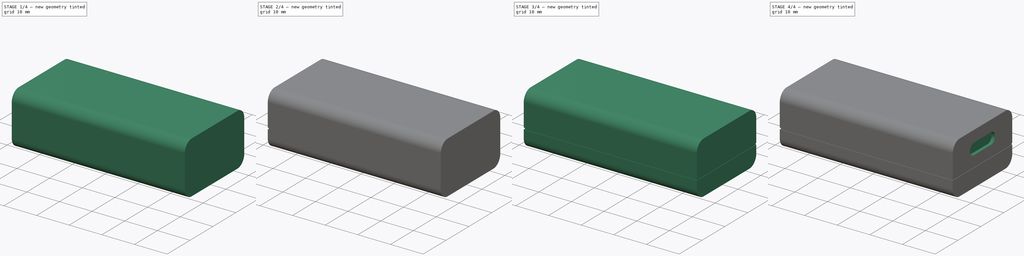
[diagram: build sequence overview — one tinted view per stage of 4, left to right]
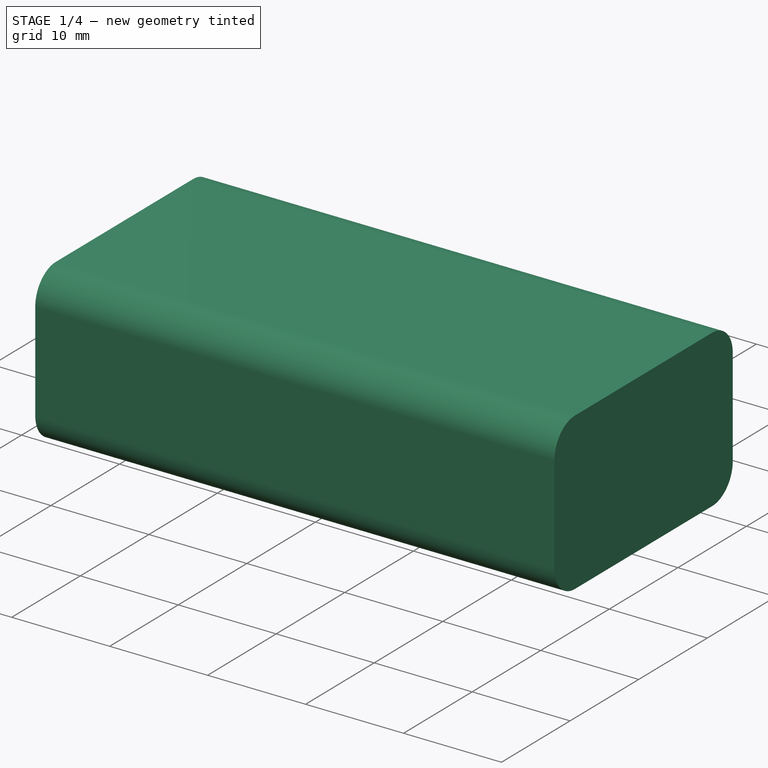
[diagram: stage 1 of 4 — iso view after this stage's code; geometry added in this stage tinted green]
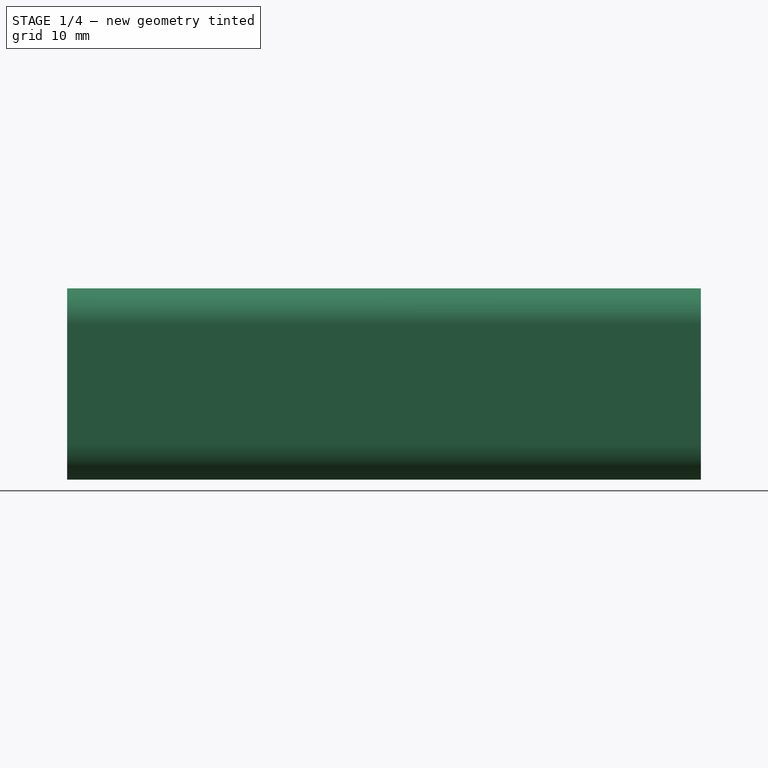
[diagram: stage 1 of 4 — front view after this stage's code; geometry added in this stage tinted green]
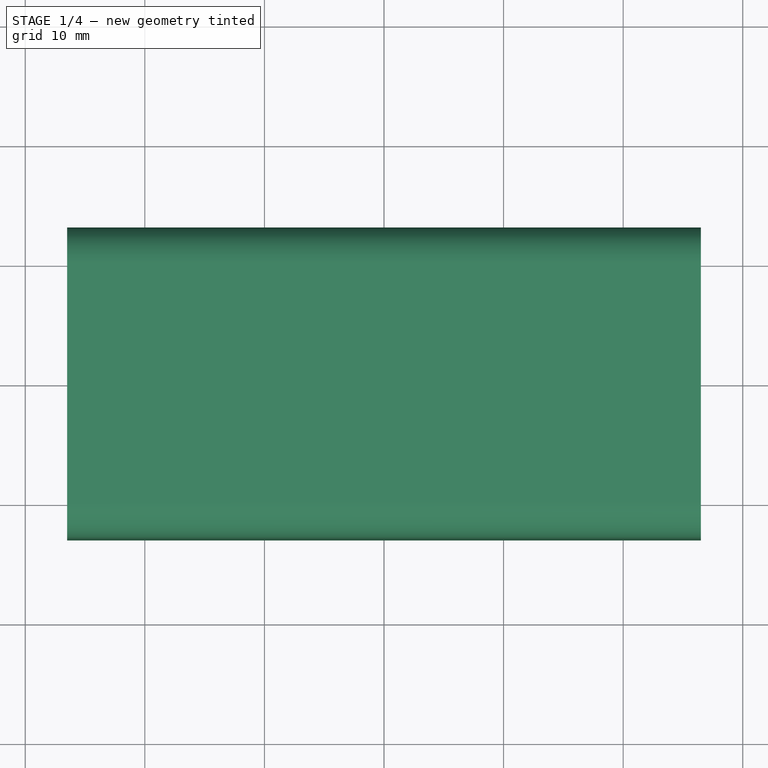
[diagram: stage 1 of 4 — top view after this stage's code; geometry added in this stage tinted green]
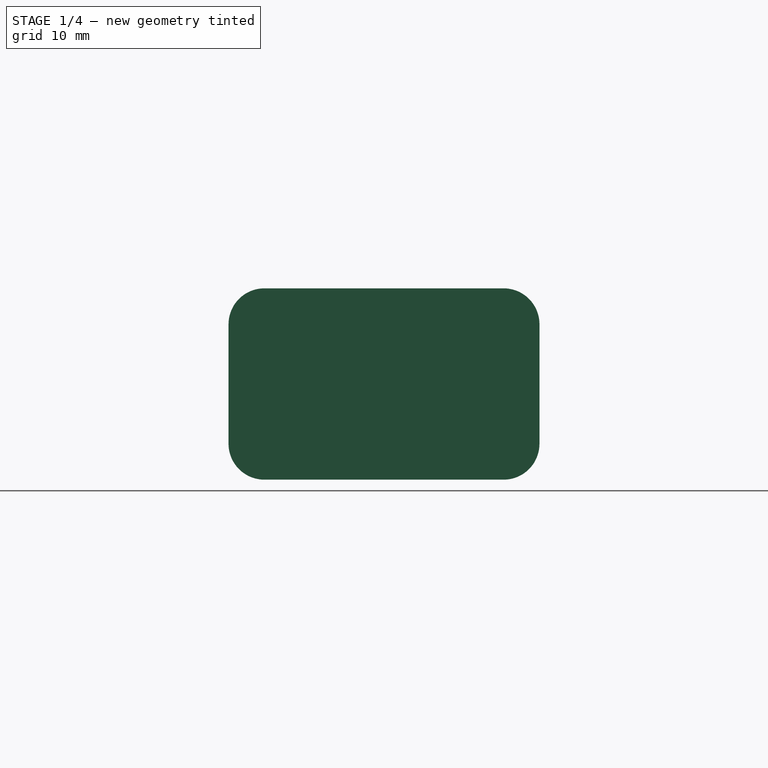
[diagram: stage 1 of 4 — right view after this stage's code; geometry added in this stage tinted green]
FCSTD DOCUMENT  (FreeCAD 0.18.4R)
Label: PortaPilas
License: All rights reserved
LicenseURL: http://en.wikipedia.org/wiki/All_rights_reserved
objects: Sketcher::SketchObject×8, PartDesign::Pocket×6, PartDesign::Pad×2, PartDesign::Fillet×1, PartDesign::Body×1
note: 26 computed .brp shape members not serialized (recipe doc carries the construction recipe); baked Part::Feature solids carry a one-line shape summary decoded from their .brp

FEATURE [Sketcher::SketchObject] Sketch
  MapMode = 5
  Support = -> [XY_Plane]
  sketch-geometry (4):
    g0: LineSegment StartX=-26.5 StartY=13 StartZ=0 EndX=26.5 EndY=13 EndZ=0
    g1: LineSegment StartX=26.5 StartY=13 StartZ=0 EndX=26.5 EndY=-13 EndZ=0
    g2: LineSegment StartX=26.5 StartY=-13 StartZ=0 EndX=-26.5 EndY=-13 EndZ=0
    g3: LineSegment StartX=-26.5 StartY=-13 StartZ=0 EndX=-26.5 EndY=13 EndZ=0
  constraints (11):
    c: Coincident(g0,g1)
    c: Coincident(g1,g2)
    c: Coincident(g2,g3)
    c: Coincident(g3,g0)
    c: Horizontal(g0)
    c: Horizontal(g2)
    c: Vertical(g1)
    c: Vertical(g3)
    c: Symmetric(g1,g0,g-1)
    c: DistanceX(g0,g0) = 53
    c: DistanceY(g3,g3) = 26
FEATURE [PartDesign::Pad] Pad
  Length = 16
  Length2 = 100
  Profile = -> Sketch
  Type = 0
FEATURE [PartDesign::Fillet] Fillet
  Base = -> Pad [Edge10,Edge9,Edge4,Edge3]
  BaseFeature = -> Pad
  Radius = 3
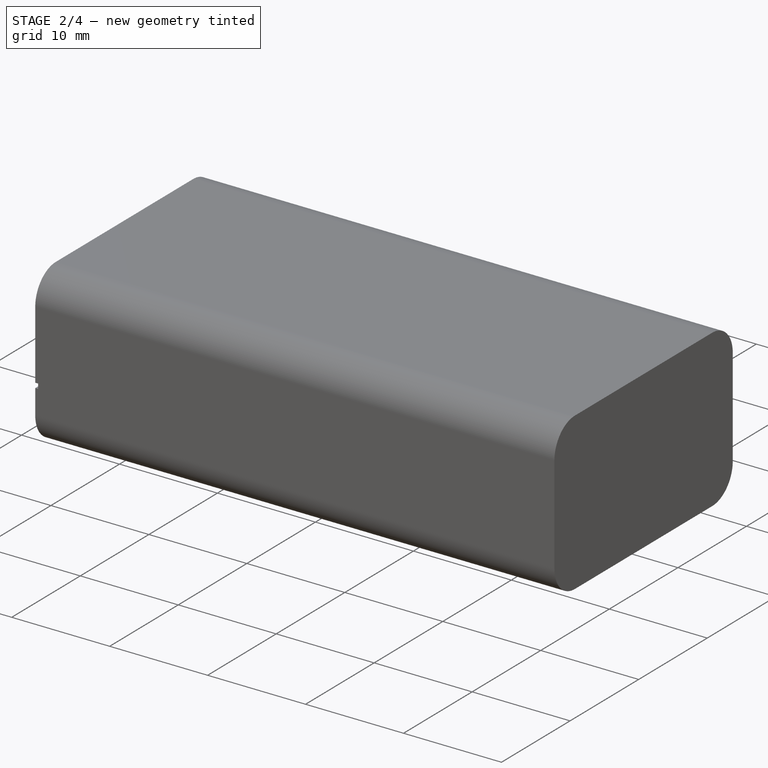
[diagram: stage 2 of 4 — iso view after this stage's code; geometry added in this stage tinted green]
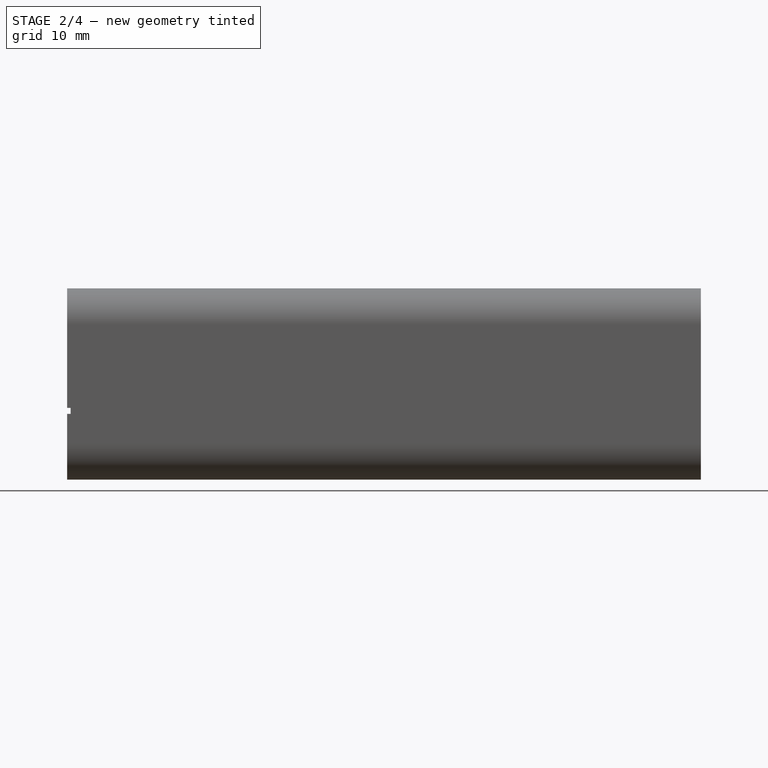
[diagram: stage 2 of 4 — front view after this stage's code; geometry added in this stage tinted green]
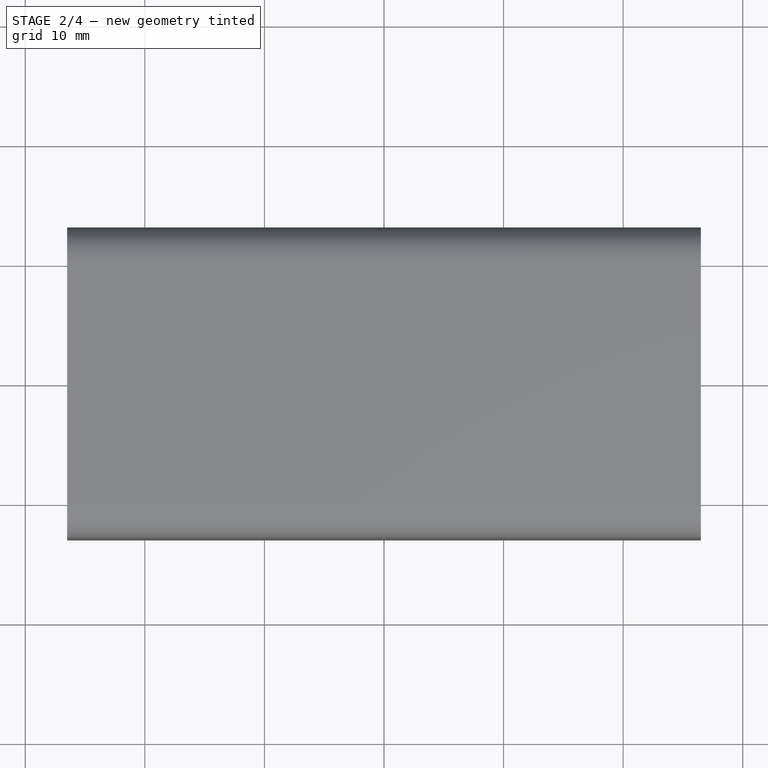
[diagram: stage 2 of 4 — top view after this stage's code; geometry added in this stage tinted green]
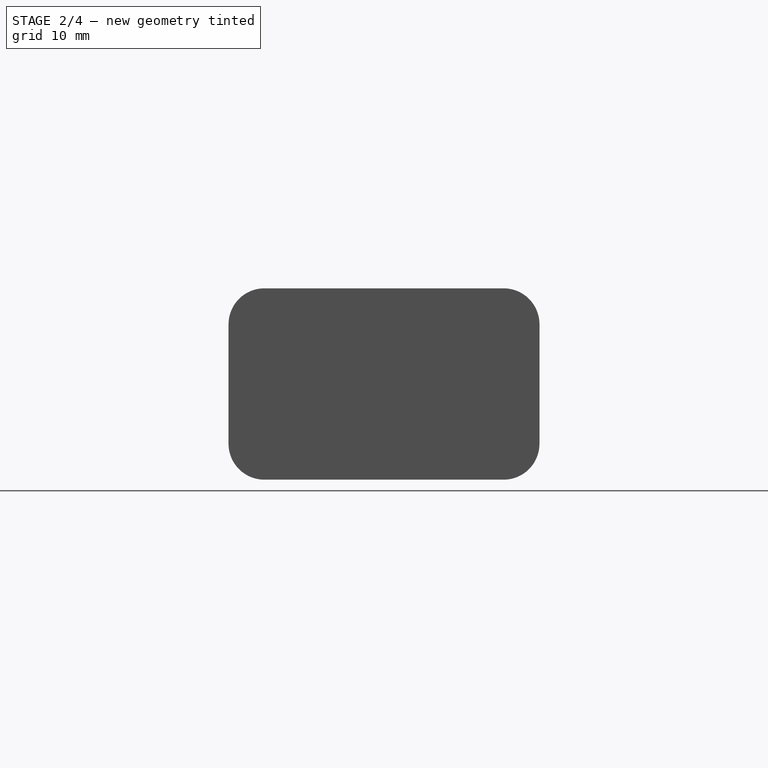
[diagram: stage 2 of 4 — right view after this stage's code; geometry added in this stage tinted green]
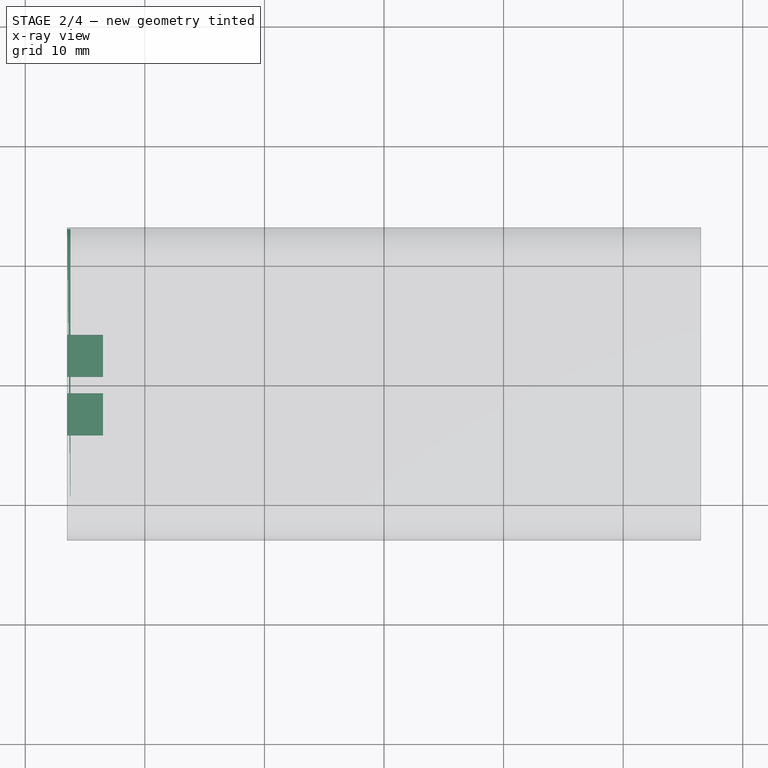
[diagram: stage 2 of 4 — x-ray composite at the top view; earlier geometry ghosted, this stage's added geometry solid]
FEATURE [Sketcher::SketchObject] Sketch001
  MapMode = 5
  Placement = pos=(-26.5,0,0) rot=(0.57735,-0.57735,-0.57735;2.0944rad)
  Support = -> [Fillet]
  sketch-geometry (8):
    g0: LineSegment StartX=-4.2 StartY=3 StartZ=0 EndX=-0.7 EndY=3 EndZ=0
    g1: LineSegment StartX=-0.7 StartY=3 StartZ=0 EndX=-0.7 EndY=1 EndZ=0
    g2: LineSegment StartX=-0.7 StartY=1 StartZ=0 EndX=-4.2 EndY=1 EndZ=0
    g3: LineSegment StartX=-4.2 StartY=1 StartZ=0 EndX=-4.2 EndY=3 EndZ=0
    g4: LineSegment StartX=0.7 StartY=3 StartZ=0 EndX=4.2 EndY=3 EndZ=0
    g5: LineSegment StartX=4.2 StartY=3 StartZ=0 EndX=4.2 EndY=1 EndZ=0
    g6: LineSegment StartX=4.2 StartY=1 StartZ=0 EndX=0.7 EndY=1 EndZ=0
    g7: LineSegment StartX=0.7 StartY=1 StartZ=0 EndX=0.7 EndY=3 EndZ=0
  constraints (24):
    c: Coincident(g0,g1)
    c: Coincident(g1,g2)
    c: Coincident(g2,g3)
    c: Coincident(g3,g0)
    c: Horizontal(g0)
    c: Horizontal(g2)
    c: Vertical(g1)
    c: Vertical(g3)
    c: DistanceX(g0,g0) = 3.5
    c: DistanceY(g1,g1) = 2
    c: DistanceX(g1,g-1) = 0.7
    c: DistanceY(g-1,g1) = 1
    c: Coincident(g4,g5)
    c: Coincident(g5,g6)
    c: Coincident(g6,g7)
    c: Coincident(g7,g4)
    c: Horizontal(g4)
    c: Horizontal(g6)
    c: Vertical(g5)
    c: Vertical(g7)
    c: Equal(g0,g4) = 3.5
    c: Equal(g1,g5) = 2
    c: DistanceX(g-1,g6) = 0.7
    c: DistanceY(g-1,g6) = 1
FEATURE [PartDesign::Pocket] Pocket
  BaseFeature = -> Fillet
  Length = 3
  Length2 = 100
  Profile = -> Sketch001
  Type = 0
FEATURE [Sketcher::SketchObject] Sketch002
  ExternalGeometry = -> [Pocket]
  MapMode = 5
  Placement = pos=(-26.5,0,0) rot=(0.57735,-0.57735,-0.57735;2.0944rad)
  Support = -> [Pocket]
  sketch-geometry (4):
    g0: LineSegment StartX=-13 StartY=6 StartZ=0 EndX=13 EndY=6 EndZ=0
    g1: LineSegment StartX=13 StartY=6 StartZ=0 EndX=13 EndY=5.5 EndZ=0
    g2: LineSegment StartX=13 StartY=5.5 StartZ=0 EndX=-13 EndY=5.5 EndZ=0
    g3: LineSegment StartX=-13 StartY=5.5 StartZ=0 EndX=-13 EndY=6 EndZ=0
  constraints (12):
    c: Coincident(g0,g1)
    c: Coincident(g1,g2)
    c: Coincident(g2,g3)
    c: Coincident(g3,g0)
    c: Horizontal(g0)
    c: Horizontal(g2)
    c: Vertical(g1)
    c: Vertical(g3)
    c: DistanceY(g-1,g2) = 5.5
    c: DistanceY(g1,g0) = 0.5
    c: PointOnObject(g0,g-4)
    c: PointOnObject(g0,g-3)
FEATURE [PartDesign::Pocket] Pocket001
  BaseFeature = -> Pocket
  Length = 0.3
  Length2 = 100
  Profile = -> Sketch002
  Type = 0
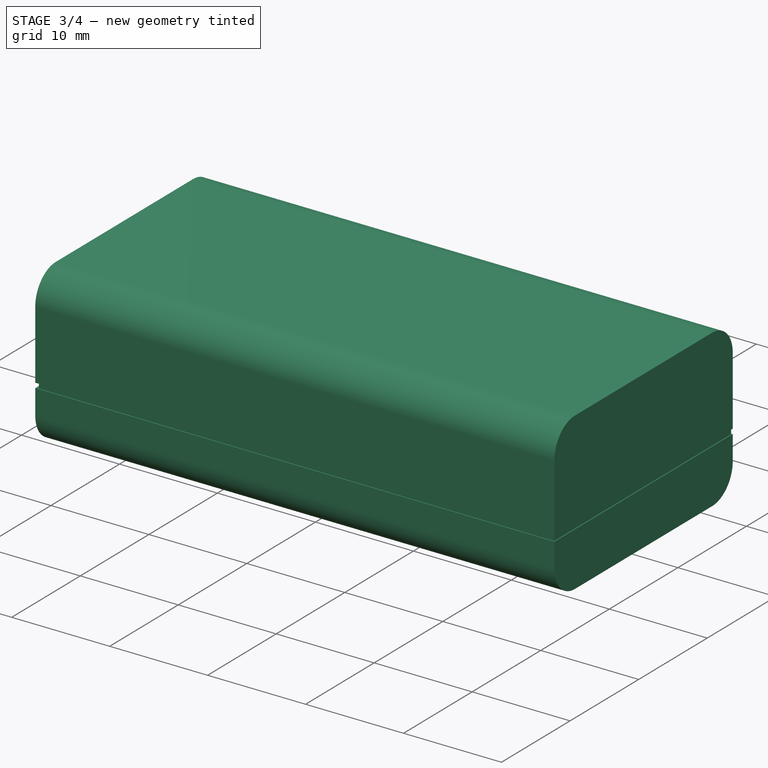
[diagram: stage 3 of 4 — iso view after this stage's code; geometry added in this stage tinted green]
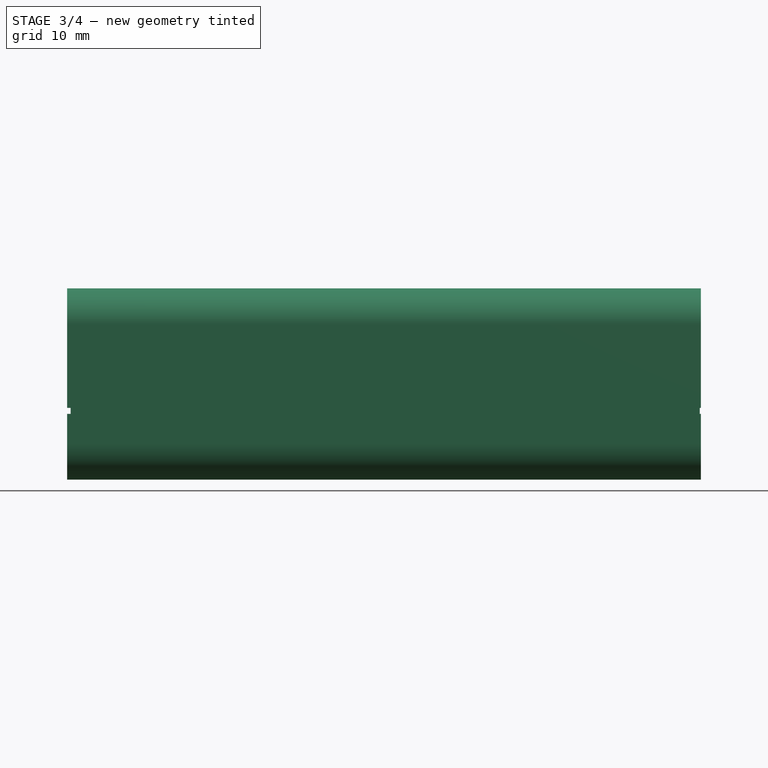
[diagram: stage 3 of 4 — front view after this stage's code; geometry added in this stage tinted green]
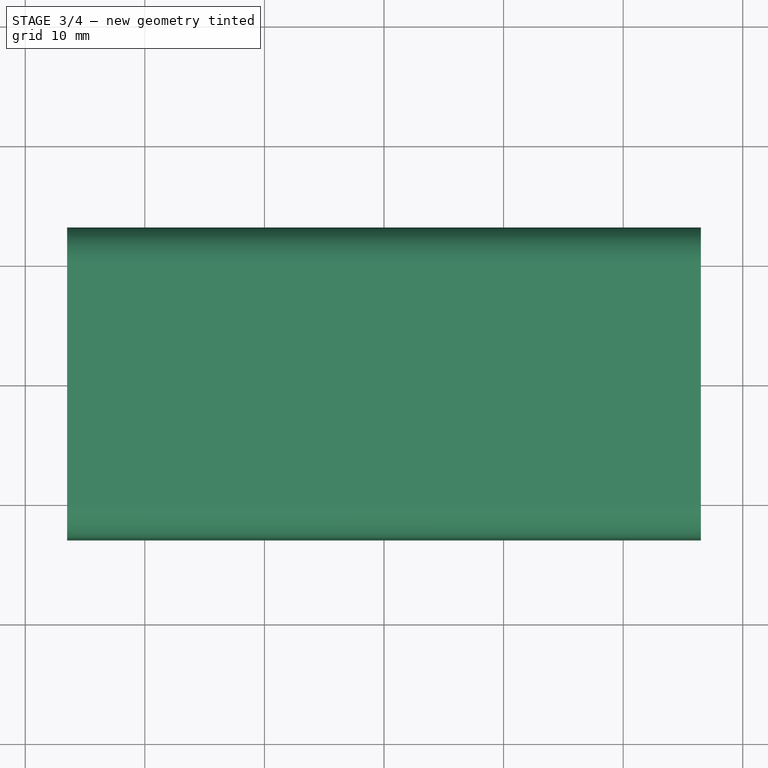
[diagram: stage 3 of 4 — top view after this stage's code; geometry added in this stage tinted green]
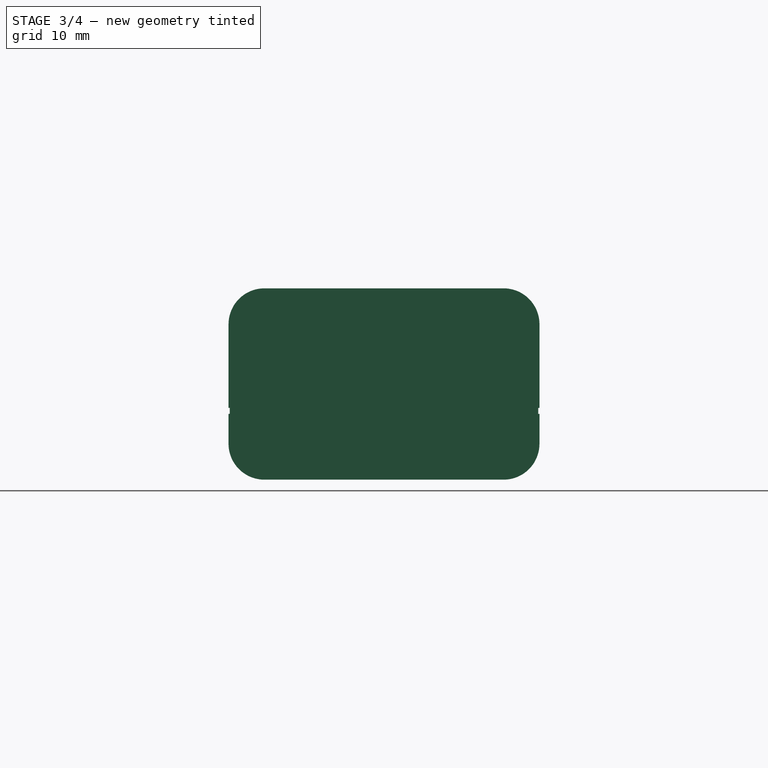
[diagram: stage 3 of 4 — right view after this stage's code; geometry added in this stage tinted green]
FEATURE [Sketcher::SketchObject] Sketch003
  ExternalGeometry = -> [Pocket001]
  MapMode = 5
  Placement = pos=(0,13,0) rot=(0,0.707107,0.707107;3.14159rad)
  Support = -> [Pocket001]
  sketch-geometry (4):
    g0: LineSegment StartX=-26.5 StartY=6 StartZ=0 EndX=26.5 EndY=6 EndZ=0
    g1: LineSegment StartX=26.5 StartY=6 StartZ=0 EndX=26.5 EndY=5.5 EndZ=0
    g2: LineSegment StartX=26.5 StartY=5.5 StartZ=0 EndX=-26.5 EndY=5.5 EndZ=0
    g3: LineSegment StartX=-26.5 StartY=5.5 StartZ=0 EndX=-26.5 EndY=6 EndZ=0
  constraints (10):
    c: Coincident(g0,g1)
    c: Coincident(g1,g2)
    c: Coincident(g2,g3)
    c: Coincident(g3,g0)
    c: Horizontal(g0)
    c: Horizontal(g2)
    c: Vertical(g3)
    c: Coincident(g0,g-4)
    c: Coincident(g1,g-5)
    c: PointOnObject(g0,g-3)
FEATURE [PartDesign::Pocket] Pocket002
  BaseFeature = -> Pocket001
  Length = 0.1
  Length2 = 100
  Profile = -> Sketch003
  Type = 0
FEATURE [Sketcher::SketchObject] Sketch004
  ExternalGeometry = -> [Pocket002]
  MapMode = 5
  Placement = pos=(26.5,0,0) rot=(0.57735,0.57735,0.57735;2.0944rad)
  Support = -> [Pocket002]
  sketch-geometry (4):
    g0: LineSegment StartX=-13 StartY=6 StartZ=0 EndX=13 EndY=6 EndZ=0
    g1: LineSegment StartX=13 StartY=6 StartZ=0 EndX=13 EndY=5.5 EndZ=0
    g2: LineSegment StartX=13 StartY=5.5 StartZ=0 EndX=-13 EndY=5.5 EndZ=0
    g3: LineSegment StartX=-13 StartY=5.5 StartZ=0 EndX=-13 EndY=6 EndZ=0
  constraints (10):
    c: Coincident(g0,g1)
    c: Coincident(g1,g2)
    c: Coincident(g2,g3)
    c: Coincident(g3,g0)
    c: Horizontal(g0)
    c: Horizontal(g2)
    c: Vertical(g3)
    c: Coincident(g1,g-4)
    c: Coincident(g0,g-3)
    c: PointOnObject(g2,g-5)
FEATURE [PartDesign::Pocket] Pocket003
  BaseFeature = -> Pocket002
  Length = 0.1
  Length2 = 100
  Profile = -> Sketch004
  Type = 0
FEATURE [Sketcher::SketchObject] Sketch005
  ExternalGeometry = -> [Pocket003]
  MapMode = 5
  Placement = pos=(0,-13,0) rot=(1,0,0;1.5708rad)
  Support = -> [Pocket003]
  sketch-geometry (4):
    g0: LineSegment StartX=-26.5 StartY=6 StartZ=0 EndX=26.5 EndY=6 EndZ=0
    g1: LineSegment StartX=26.5 StartY=6 StartZ=0 EndX=26.5 EndY=5.5 EndZ=0
    g2: LineSegment StartX=26.5 StartY=5.5 StartZ=0 EndX=-26.5 EndY=5.5 EndZ=0
    g3: LineSegment StartX=-26.5 StartY=5.5 StartZ=0 EndX=-26.5 EndY=6 EndZ=0
  constraints (9):
    c: Coincident(g0,g1)
    c: Coincident(g1,g2)
    c: Coincident(g2,g3)
    c: Coincident(g3,g0)
    c: Horizontal(g2)
    c: Vertical(g3)
    c: Coincident(g0,g-5)
    c: Coincident(g1,g-6)
    c: Coincident(g0,g-4)
FEATURE [PartDesign::Pocket] Pocket004
  BaseFeature = -> Pocket003
  Length = 0.1
  Length2 = 100
  Profile = -> Sketch005
  Type = 0
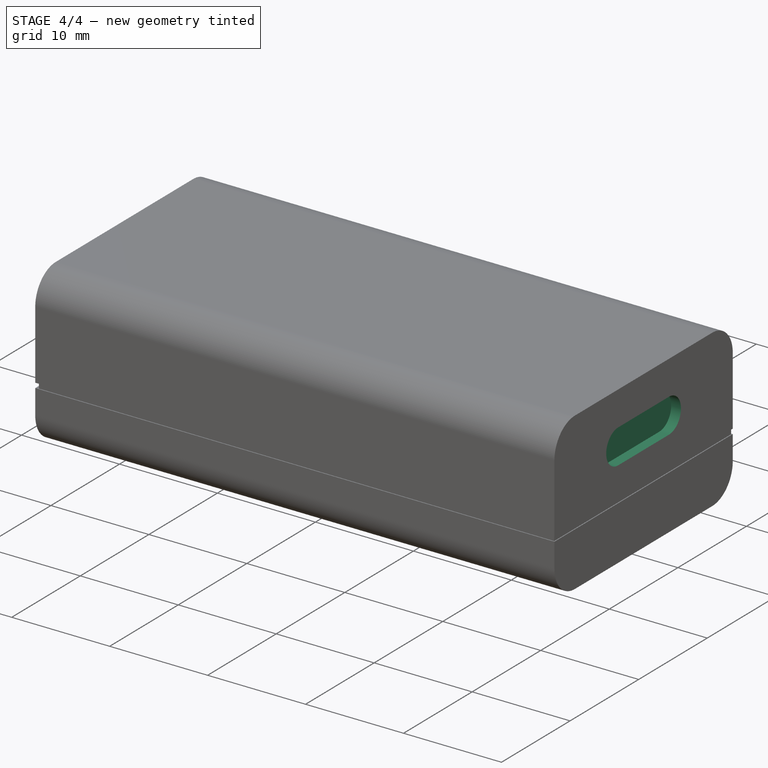
[diagram: stage 4 of 4 — iso view after this stage's code; geometry added in this stage tinted green]
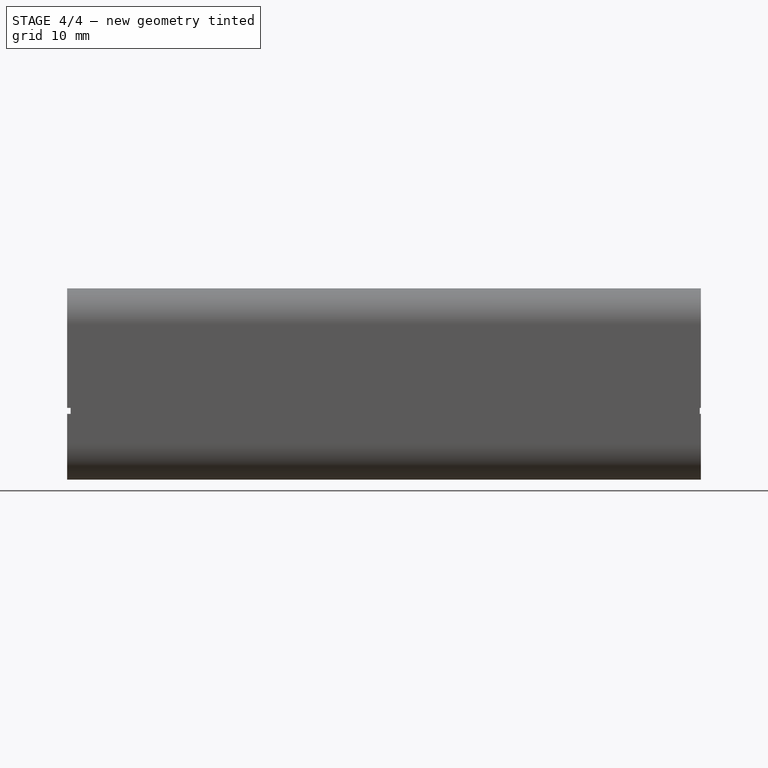
[diagram: stage 4 of 4 — front view after this stage's code; geometry added in this stage tinted green]
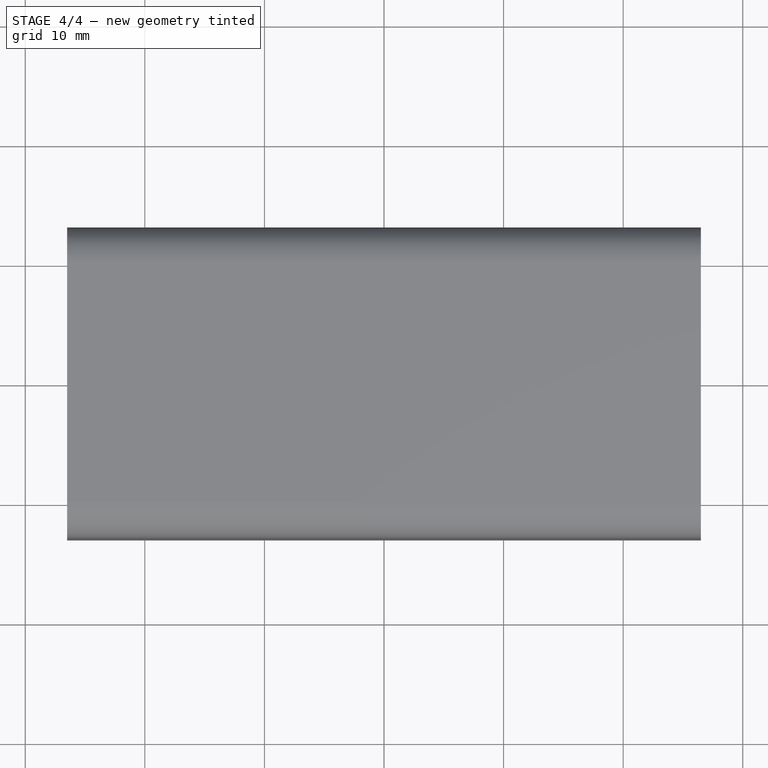
[diagram: stage 4 of 4 — top view after this stage's code; geometry added in this stage tinted green]
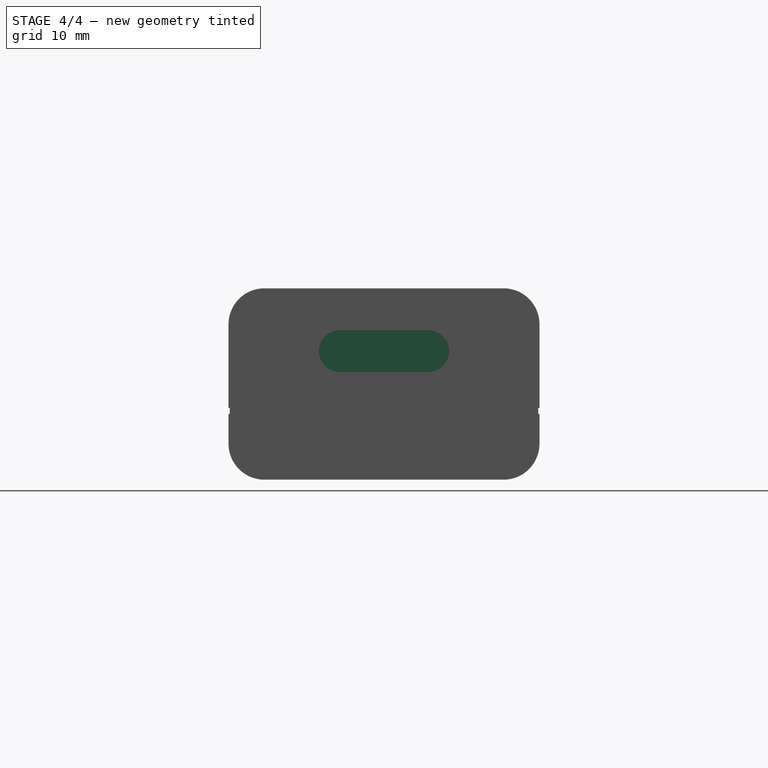
[diagram: stage 4 of 4 — right view after this stage's code; geometry added in this stage tinted green]
FEATURE [Sketcher::SketchObject] Sketch006
  ExternalGeometry = -> [Pocket004]
  MapMode = 5
  Placement = pos=(-26.5,0,0) rot=(0.57735,-0.57735,-0.57735;2.0944rad)
  Support = -> [Pocket004]
  sketch-geometry (8):
    g0: LineSegment StartX=-4 StartY=2.4 StartZ=0 EndX=-0.9 EndY=2.4 EndZ=0
    g1: LineSegment StartX=-0.9 StartY=2.4 StartZ=0 EndX=-0.9 EndY=1.4 EndZ=0
    g2: LineSegment StartX=-0.9 StartY=1.4 StartZ=0 EndX=-4 EndY=1.4 EndZ=0
    g3: LineSegment StartX=-4 StartY=1.4 StartZ=0 EndX=-4 EndY=2.4 EndZ=0
    g4: LineSegment StartX=0.9 StartY=2.4 StartZ=0 EndX=4 EndY=2.4 EndZ=0
    g5: LineSegment StartX=4 StartY=2.4 StartZ=0 EndX=4 EndY=1.4 EndZ=0
    g6: LineSegment StartX=4 StartY=1.4 StartZ=0 EndX=0.9 EndY=1.4 EndZ=0
    g7: LineSegment StartX=0.9 StartY=1.4 StartZ=0 EndX=0.9 EndY=2.4 EndZ=0
  constraints (24):
    c: Coincident(g0,g1)
    c: Coincident(g1,g2)
    c: Coincident(g2,g3)
    c: Coincident(g3,g0)
    c: Horizontal(g0)
    c: Horizontal(g2)
    c: Vertical(g1)
    c: Vertical(g3)
    c: DistanceY(g-5,g1) = 0.4
    c: DistanceY(g3,g3) = 1
    c: DistanceX(g1,g-5) = 0.2
    c: DistanceX(g-5,g2) = 0.2
    c: Coincident(g4,g5)
    c: Coincident(g5,g6)
    c: Coincident(g6,g7)
    c: Coincident(g7,g4)
    c: Horizontal(g4)
    c: Horizontal(g6)
    c: Vertical(g5)
    c: Vertical(g7)
    c: Equal(g3,g7) = 1
    c: DistanceX(g5,g-7) = 0.2
    c: DistanceX(g-7,g6) = 0.2
    c: Horizontal(g6,g1)
FEATURE [PartDesign::Pad] Pad001
  BaseFeature = -> Pocket004
  Length = 10
  Length2 = 100
  Profile = -> Sketch006
  Reversed = true
  Type = 2
FEATURE [Sketcher::SketchObject] Sketch007
  ExternalGeometry = -> [Pad001]
  MapMode = 5
  Placement = pos=(26.5,0,0) rot=(0.57735,0.57735,0.57735;2.0944rad)
  Support = -> [Pad001]
  sketch-geometry (4):
    g0: ArcOfCircle CenterX=-3.7 CenterY=10.75 CenterZ=0 NormalX=0 NormalY=0 NormalZ=1 AngleXU=0 Radius=1.75 StartAngle=1.5708 EndAngle=4.71239
    g1: ArcOfCircle CenterX=3.7 CenterY=10.75 CenterZ=0 NormalX=0 NormalY=0 NormalZ=1 AngleXU=0 Radius=1.75 StartAngle=4.71239 EndAngle=7.85398
    g2: LineSegment StartX=-3.7 StartY=9 StartZ=0 EndX=3.7 EndY=9 EndZ=0
    g3: LineSegment StartX=-3.7 StartY=12.5 StartZ=0 EndX=3.7 EndY=12.5 EndZ=0
  constraints (9):
    c: Tangent(g0,g3) = 1.5708
    c: Tangent(g0,g2) = -1.5708
    c: Tangent(g2,g1) = -1.5708
    c: Tangent(g3,g1) = 1.5708
    c: Horizontal(g2)
    c: Symmetric(g0,g1,g-2)
    c: DistanceY(g0,g0) = 3.5
    c: DistanceY(g0,g-3) = 3.5
    c: DistanceX(g0,g1) = 7.4
FEATURE [PartDesign::Pocket] Pocket005  label="PortaPilas"
  BaseFeature = -> Pad001
  Length = 1
  Length2 = 100
  Profile = -> Sketch007
  Type = 0
FEATURE [PartDesign::Body] Body
  Group = -> [Sketch,Pad,Fillet,Sketch001,Pocket,Sketch002,Pocket001,Sketch003,Pocket002,Sketch004,Pocket003,Sketch005,Pocket004,Sketch006,Pad001,Sketch007,Pocket005]
  Origin = -> Origin
  Tip = -> Pocket005
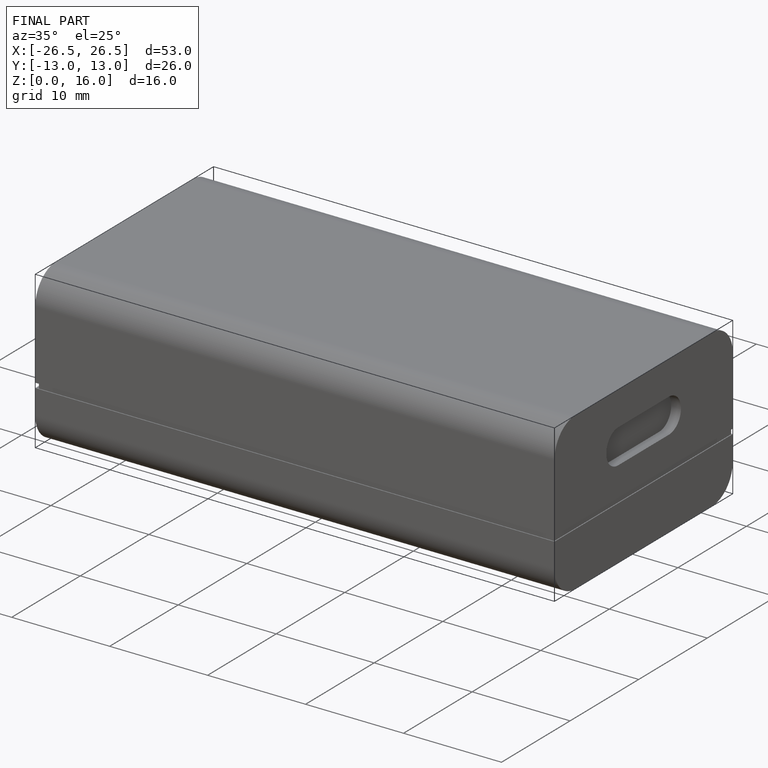
[diagram: finished part — iso view with bounding-box wireframe]
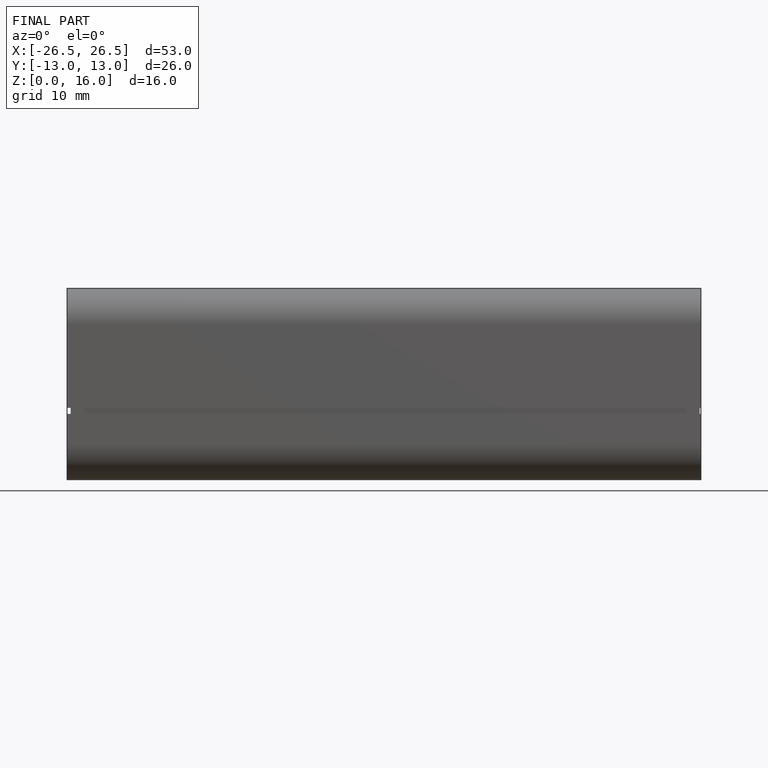
[diagram: finished part — front view with bounding-box wireframe]
